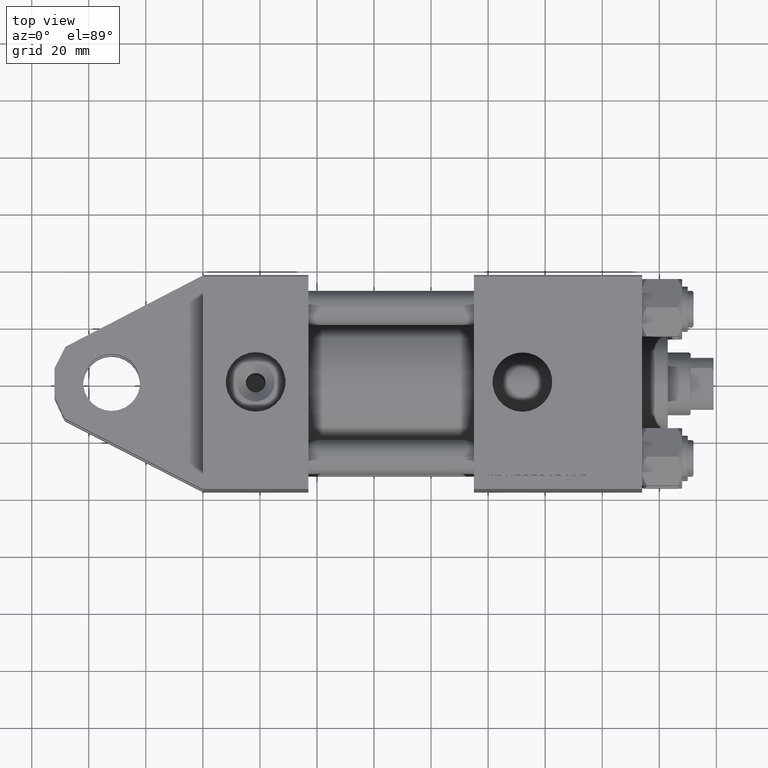
[diagram: clean part render]
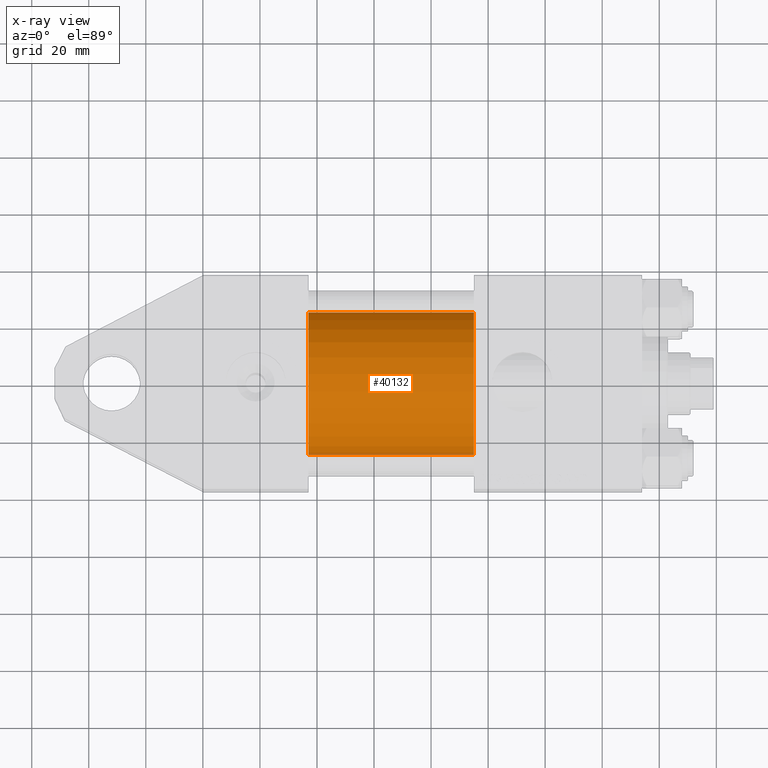
[diagram: x-ray — body ghosted, one internal face saturated and labeled with its STEP entity id]
A machine part, top view, then the same camera in x-ray: the body is ghosted and one INTERNAL B-rep face — a face not visible from any outside direction — is saturated and labeled: STEP entity #40132.
In plain terms, the highlighted cylindrical surface (partial cylindrical patch) has radius 25 mm, axis along (-1, -0, 0).
Its self-contained STEP definition (entity closure, byte-faithful):
#1256 = EDGE_CURVE ( 'NONE', #42160, #8815, #37412, .T. ) ;
#1429 = DIRECTION ( 'NONE',  ( -1.000000000000000000, -0.000000000000000000, -0.000000000000000000 ) ) ;
#1609 = CARTESIAN_POINT ( 'NONE',  ( 95.00000000000000000, -4.078299540852317872E-16, -25.00000000000000000 ) ) ;
#4796 = DIRECTION ( 'NONE',  ( 1.000000000000000000, 0.000000000000000000, 0.000000000000000000 ) ) ;
#5307 = EDGE_CURVE ( 'NONE', #31296, #42160, #13609, .T. ) ;
#5908 = ORIENTED_EDGE ( 'NONE', *, *, #16612, .F. ) ;
#6137 = CIRCLE ( 'NONE', #50368, 25.00000000000000000 ) ;
#7089 = LINE ( 'NONE', #46560, #41214 ) ;
#8503 = ORIENTED_EDGE ( 'NONE', *, *, #1256, .T. ) ;
#8815 = VERTEX_POINT ( 'NONE', #40845 ) ;
#9503 = CARTESIAN_POINT ( 'NONE',  ( 37.00000000000000000, -3.469446951953614189E-15, 0.000000000000000000 ) ) ;
#9752 = DIRECTION ( 'NONE',  ( 0.000000000000000000, 0.000000000000000000, -1.000000000000000000 ) ) ;
#11574 = CARTESIAN_POINT ( 'NONE',  ( 37.00000000000000000, -3.469446951953614189E-15, 25.00000000000000000 ) ) ;
#12943 = FACE_OUTER_BOUND ( 'NONE', #17222, .T. ) ;
#13383 = ORIENTED_EDGE ( 'NONE', *, *, #5307, .T. ) ;
#13609 = CIRCLE ( 'NONE', #43382, 25.00000000000000000 ) ;
#16612 = EDGE_CURVE ( 'NONE', #31296, #39524, #7089, .T. ) ;
#17222 = EDGE_LOOP ( 'NONE', ( #13383, #8503, #24991, #5908 ) ) ;
#17632 = AXIS2_PLACEMENT_3D ( 'NONE', #49268, #1429, #45096 ) ;
#18570 = DIRECTION ( 'NONE',  ( -1.000000000000000000, -0.000000000000000000, -0.000000000000000000 ) ) ;
#20394 = DIRECTION ( 'NONE',  ( 1.000000000000000000, 0.000000000000000000, 0.000000000000000000 ) ) ;
#23020 = DIRECTION ( 'NONE',  ( -1.000000000000000000, -0.000000000000000000, -0.000000000000000000 ) ) ;
#24215 = VECTOR ( 'NONE', #18570, 1000.000000000000000 ) ;
#24991 = ORIENTED_EDGE ( 'NONE', *, *, #45755, .F. ) ;
#31296 = VERTEX_POINT ( 'NONE', #33520 ) ;
#31640 = DIRECTION ( 'NONE',  ( 0.000000000000000000, 0.000000000000000000, -1.000000000000000000 ) ) ;
#33520 = CARTESIAN_POINT ( 'NONE',  ( 95.00000000000000000, -3.469446951953614189E-15, 25.00000000000000000 ) ) ;
#37412 = LINE ( 'NONE', #1609, #24215 ) ;
#39524 = VERTEX_POINT ( 'NONE', #11574 ) ;
#40132 = ADVANCED_FACE ( 'NONE', ( #12943 ), #49531, .F. ) ;
#40845 = CARTESIAN_POINT ( 'NONE',  ( 37.00000000000000000, -4.078299540852317872E-16, -25.00000000000000000 ) ) ;
#41214 = VECTOR ( 'NONE', #23020, 1000.000000000000000 ) ;
#42160 = VERTEX_POINT ( 'NONE', #47310 ) ;
#43382 = AXIS2_PLACEMENT_3D ( 'NONE', #48378, #20394, #31640 ) ;
#45096 = DIRECTION ( 'NONE',  ( 0.000000000000000000, 0.000000000000000000, 1.000000000000000000 ) ) ;
#45755 = EDGE_CURVE ( 'NONE', #39524, #8815, #6137, .T. ) ;
#46560 = CARTESIAN_POINT ( 'NONE',  ( 95.00000000000000000, -3.469446951953614189E-15, 25.00000000000000000 ) ) ;
#47310 = CARTESIAN_POINT ( 'NONE',  ( 95.00000000000000000, -4.078299540852317872E-16, -25.00000000000000000 ) ) ;
#48378 = CARTESIAN_POINT ( 'NONE',  ( 95.00000000000000000, -3.469446951953614189E-15, 0.000000000000000000 ) ) ;
#49268 = CARTESIAN_POINT ( 'NONE',  ( 95.00000000000000000, -3.469446951953614189E-15, 0.000000000000000000 ) ) ;
#49531 = CYLINDRICAL_SURFACE ( 'NONE', #17632, 25.00000000000000000 ) ;
#50368 = AXIS2_PLACEMENT_3D ( 'NONE', #9503, #4796, #9752 ) ;